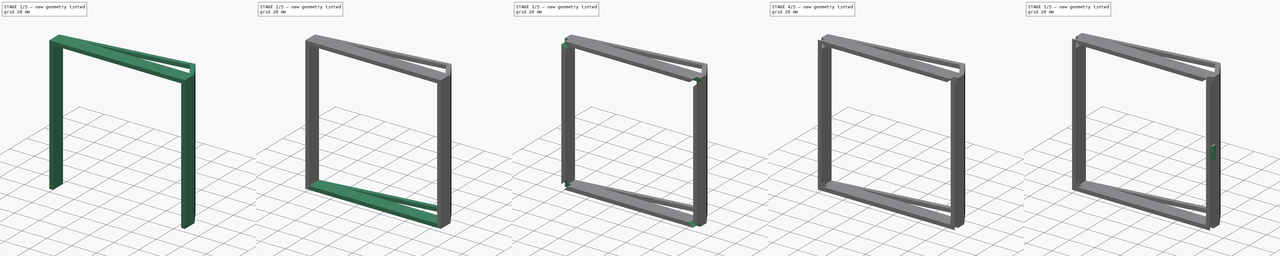
[diagram: build sequence overview — one tinted view per stage of 5, left to right]
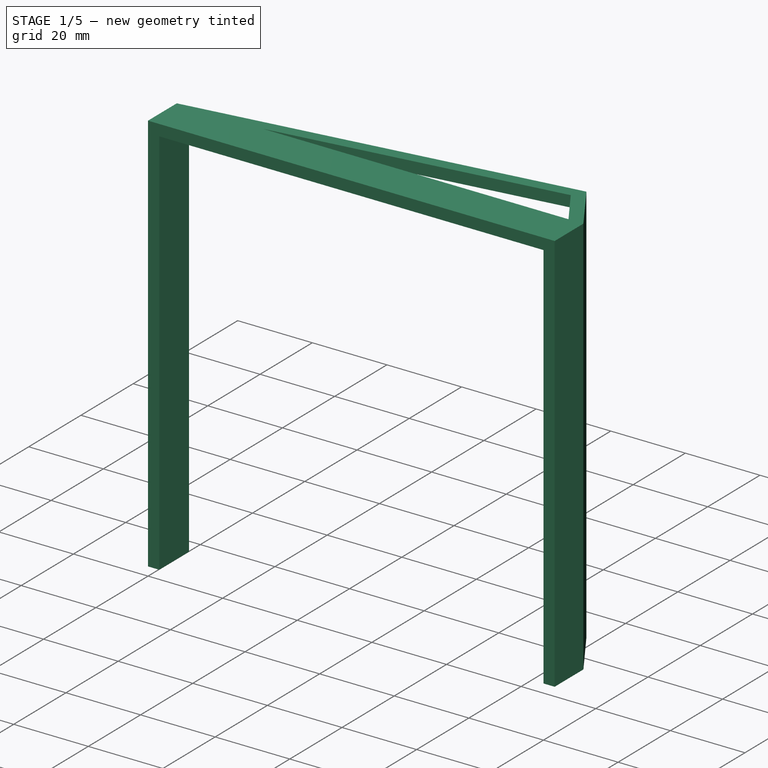
[diagram: stage 1 of 5 — iso view after this stage's code; geometry added in this stage tinted green]
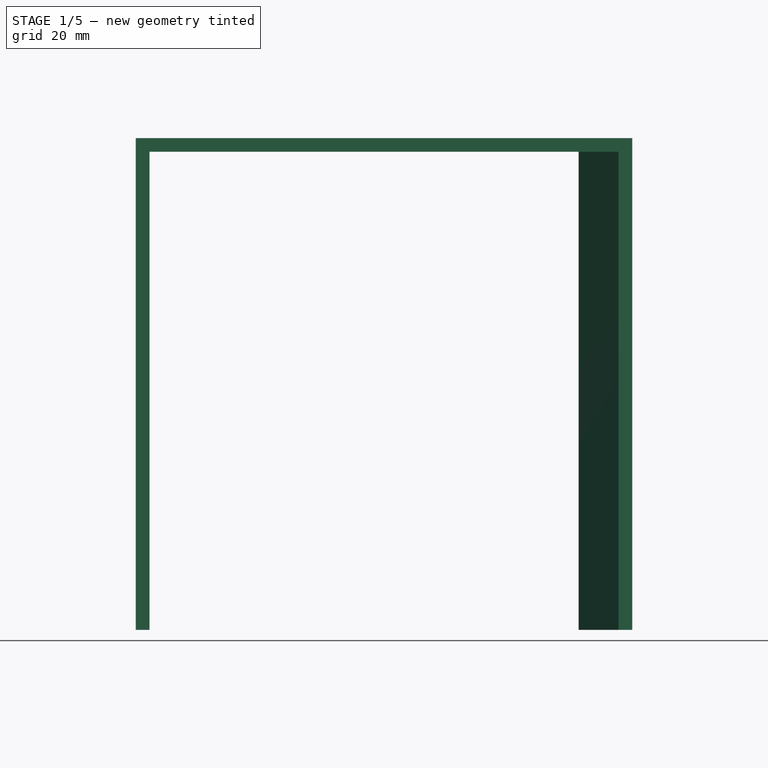
[diagram: stage 1 of 5 — front view after this stage's code; geometry added in this stage tinted green]
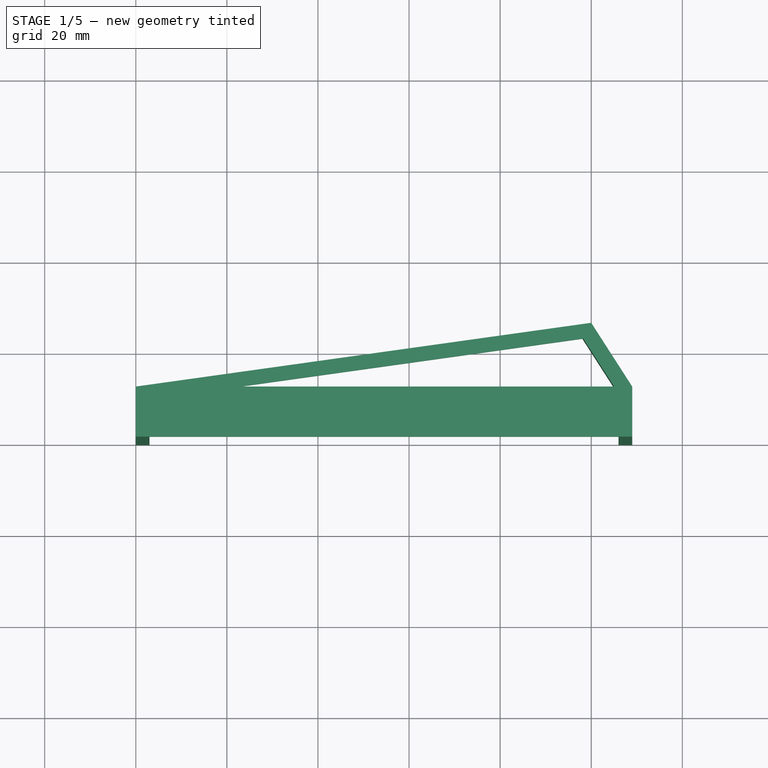
[diagram: stage 1 of 5 — top view after this stage's code; geometry added in this stage tinted green]
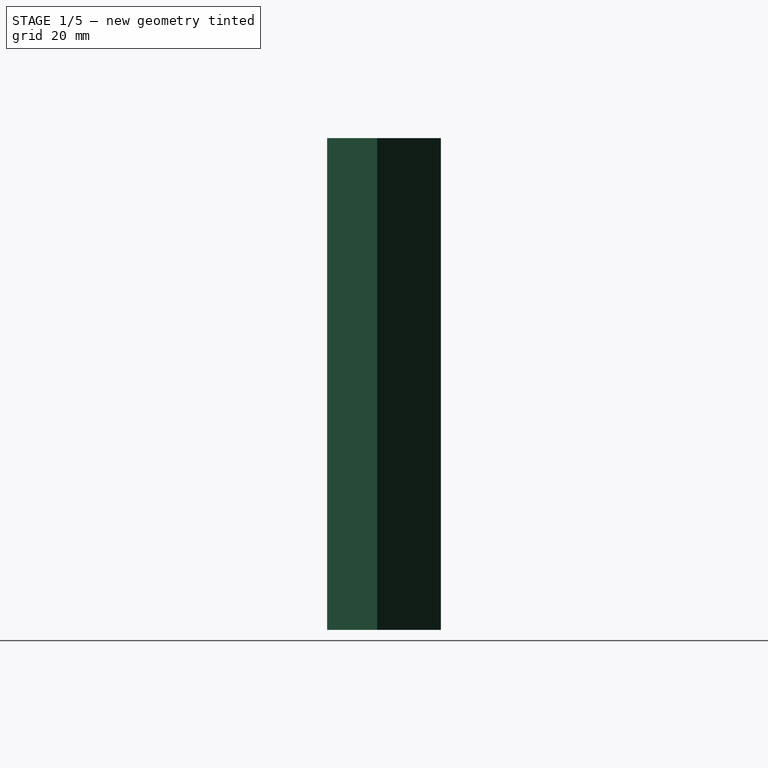
[diagram: stage 1 of 5 — right view after this stage's code; geometry added in this stage tinted green]
FCSTD DOCUMENT  (FreeCAD 0.16R6712 (Git))
Label: speaker-frame
License: All rights reserved
LicenseURL: http://en.wikipedia.org/wiki/All_rights_reserved
objects: Sketcher::SketchObject×7, PartDesign::Pad×7, Part::Fuse×7, Part::Box×4, Part::Cut×2
note: 34 computed .brp shape members not serialized (recipe doc carries the construction recipe); baked Part::Feature solids carry a one-line shape summary decoded from their .brp

FEATURE [Sketcher::SketchObject] Sketch001  label="Side 002"
  Placement = pos=(0,0,105) rot=(0,0,1;0rad)
  sketch-geometry (8):
    g0: LineSegment StartX=0 StartY=0 StartZ=0 EndX=109 EndY=0 EndZ=0
    g1: LineSegment StartX=109 StartY=0 StartZ=0 EndX=109 EndY=11 EndZ=0
    g2: LineSegment StartX=109 StartY=11 StartZ=0 EndX=100 EndY=25 EndZ=0
    g3: LineSegment StartX=100 StartY=25 StartZ=0 EndX=0 EndY=11 EndZ=0
    g4: LineSegment StartX=0 StartY=11 StartZ=0 EndX=0 EndY=0 EndZ=0
    g5: LineSegment StartX=105 StartY=11 StartZ=0 EndX=23 EndY=11 EndZ=0
    g6: LineSegment StartX=23 StartY=11 StartZ=0 EndX=98.2294 EndY=21.5321 EndZ=0
    g7: LineSegment StartX=98.2294 StartY=21.5321 StartZ=0 EndX=105 EndY=11 EndZ=0
  constraints (24):
    c: Coincident(g-1,g0)
    c: Horizontal(g0)
    c: Coincident(g0,g1)
    c: Vertical(g1)
    c: Coincident(g1,g2)
    c: Coincident(g2,g3)
    c: PointOnObject(g3,g-2)
    c: Coincident(g3,g4)
    c: Vertical(g4)
    c: Horizontal(g5)
    c: Coincident(g5,g6)
    c: Coincident(g6,g7)
    c: Coincident(g7,g5)
    c: DistanceY(g4,g4) = 11
    c: Coincident(g-1,g4)
    c: DistanceX(g0,g0) = 109
    c: DistanceY(g1,g1) = 11
    c: DistanceX(g2,g1) = 9
    c: DistanceY(g5,g3) = 0
    c: Parallel(g2,g7)
    c: Parallel(g6,g3)
    c: DistanceX(g5,g1) = 4
    c: DistanceX(g3,g5) = 23
    c: DistanceY(g1,g2) = 14
FEATURE [PartDesign::Pad] Pad001  label="Side 2"
  Length = 3
  Length2 = 100
  Placement = pos=(0,0,105) rot=(0,0,1;0rad)
  Sketch = -> Sketch001
  Type = 0
FEATURE [Sketcher::SketchObject] Sketch002
  sketch-geometry (5):
    g0: LineSegment StartX=0 StartY=0 StartZ=0 EndX=0 EndY=11 EndZ=0
    g1: LineSegment StartX=0 StartY=11 StartZ=0 EndX=3 EndY=11.3979 EndZ=0
    g2: LineSegment StartX=3 StartY=11.3979 StartZ=0 EndX=3 EndY=0 EndZ=0
    g3: LineSegment StartX=3 StartY=0 StartZ=0 EndX=0 EndY=0 EndZ=0
    g4: LineSegment StartX=0.024314 StartY=10.3805 StartZ=0 EndX=0 EndY=11 EndZ=0
  constraints (11):
    c: Coincident(g-1,g0)
    c: PointOnObject(g0,g-2)
    c: Coincident(g0,g1)
    c: Coincident(g1,g2)
    c: PointOnObject(g2,g-1)
    c: Vertical(g2)
    c: Coincident(g2,g3)
    c: Coincident(g3,g0)
    c: Coincident(g4,g0)
    c: DistanceY(g0,g0) = 11
    c: DistanceX(g3,g3) = 3
FEATURE [PartDesign::Pad] Pad002  label="Vorne"
  Length = 108
  Length2 = 100
  Sketch = -> Sketch002
  Type = 0
FEATURE [Sketcher::SketchObject] Sketch003
  sketch-geometry (10):
    g0: LineSegment StartX=109 StartY=0 StartZ=0 EndX=109 EndY=11 EndZ=0
    g1: LineSegment StartX=109 StartY=11 StartZ=0 EndX=100 EndY=25 EndZ=0
    g2: LineSegment StartX=100 StartY=25 StartZ=0 EndX=97.2477 EndY=24.6147 EndZ=0
    g3: LineSegment StartX=97.2477 StartY=24.6147 StartZ=0 EndX=106 EndY=11 EndZ=0
    g4: LineSegment StartX=106 StartY=11 StartZ=0 EndX=106 EndY=0 EndZ=0
    g5: LineSegment StartX=106 StartY=0 StartZ=0 EndX=109 EndY=0 EndZ=0
    g6: LineSegment [constr] StartX=0 StartY=0 StartZ=0 EndX=0 EndY=11 EndZ=0
    g7: LineSegment [constr] StartX=0 StartY=11 StartZ=0 EndX=100 EndY=25 EndZ=0
    g8: LineSegment [constr] StartX=100 StartY=25 StartZ=0 EndX=100 EndY=0 EndZ=0
    g9: LineSegment [constr] StartX=100 StartY=0 StartZ=0 EndX=0 EndY=0 EndZ=0
  constraints (29):
    c: Vertical(g0)
    c: Coincident(g0,g1)
    c: Coincident(g1,g2)
    c: Coincident(g2,g3)
    c: Coincident(g3,g4)
    c: Vertical(g4)
    c: Coincident(g4,g5)
    c: Coincident(g5,g0)
    c: Horizontal(g5)
    c: Parallel(g3,g1)
    c: DistanceY(g0,g0) = 11
    c: PointOnObject(g6,g-2)
    c: Vertical(g6)
    c: Coincident(g6,g7)
    c: Coincident(g7,g8)
    c: PointOnObject(g8,g-1)
    c: Vertical(g8)
    c: Coincident(g8,g9)
    c: Coincident(g9,g6)
    c: Horizontal(g9)
    c: DistanceX(g9,g9) = 100
    c: DistanceY(g6,g6) = 11
    c: DistanceY(g8,g8) = 25
    c: Coincident(g1,g7)
    c: Parallel(g2,g7)
    c: DistanceX(g8,g0) = 9
    c: DistanceY(g0,g3) = 0
    c: DistanceY(g8,g4) = 0
    c: DistanceX(g3,g0) = 3
FEATURE [PartDesign::Pad] Pad003
  Length = 108
  Length2 = 100
  Sketch = -> Sketch003
  Type = 0
FEATURE [Part::Fuse] Fusion
  Base = -> Pad002
  Tool = -> Pad003
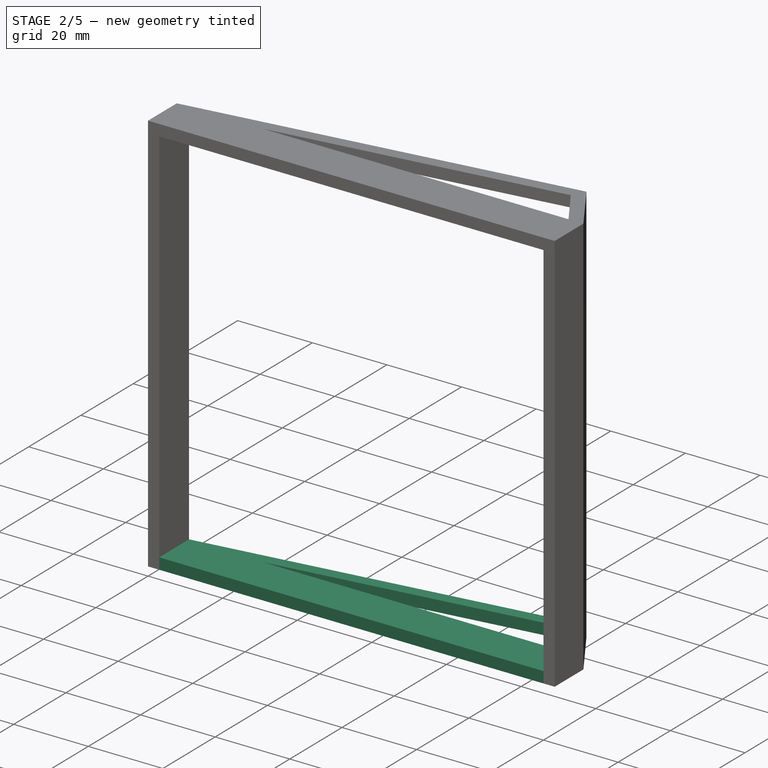
[diagram: stage 2 of 5 — iso view after this stage's code; geometry added in this stage tinted green]
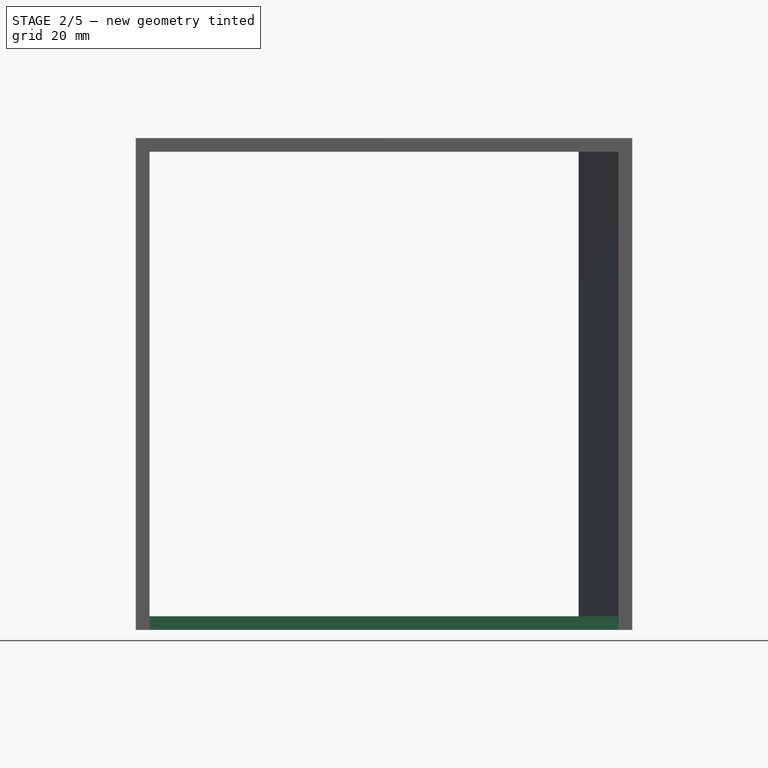
[diagram: stage 2 of 5 — front view after this stage's code; geometry added in this stage tinted green]
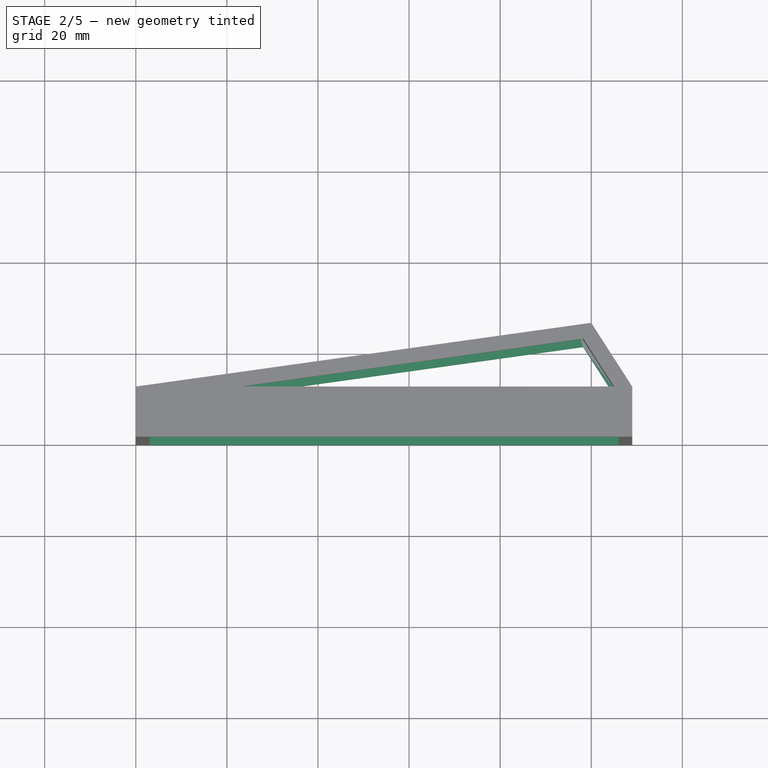
[diagram: stage 2 of 5 — top view after this stage's code; geometry added in this stage tinted green]
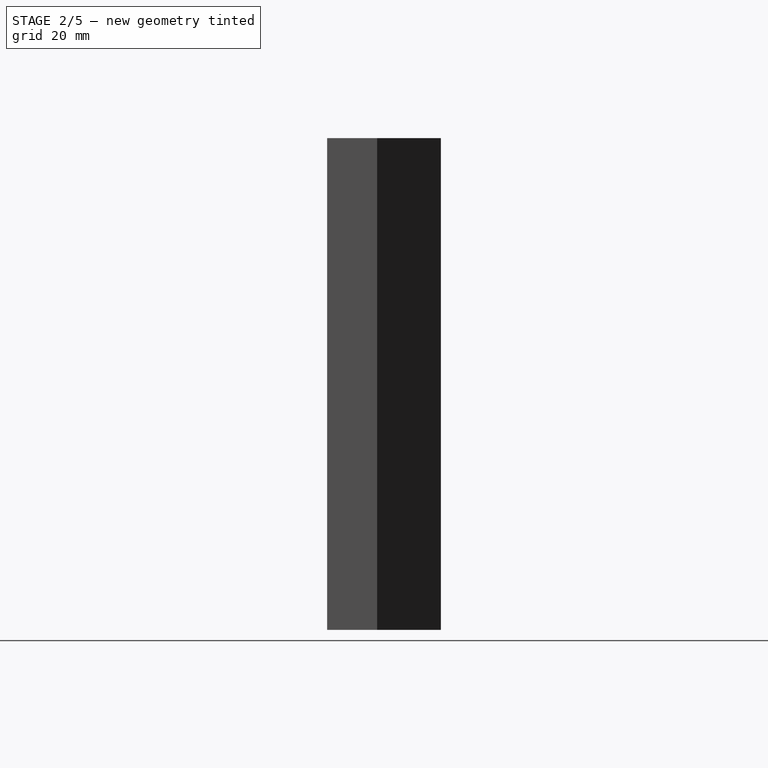
[diagram: stage 2 of 5 — right view after this stage's code; geometry added in this stage tinted green]
FEATURE [Sketcher::SketchObject] Sketch  label="Side 1"
  sketch-geometry (8):
    g0: LineSegment StartX=0 StartY=0 StartZ=0 EndX=109 EndY=0 EndZ=0
    g1: LineSegment StartX=109 StartY=0 StartZ=0 EndX=109 EndY=11 EndZ=0
    g2: LineSegment StartX=109 StartY=11 StartZ=0 EndX=100 EndY=25 EndZ=0
    g3: LineSegment StartX=100 StartY=25 StartZ=0 EndX=0 EndY=11 EndZ=0
    g4: LineSegment StartX=0 StartY=11 StartZ=0 EndX=0 EndY=0 EndZ=0
    g5: LineSegment StartX=105 StartY=11 StartZ=0 EndX=23 EndY=11 EndZ=0
    g6: LineSegment StartX=23 StartY=11 StartZ=0 EndX=98.2294 EndY=21.5321 EndZ=0
    g7: LineSegment StartX=98.2294 StartY=21.5321 StartZ=0 EndX=105 EndY=11 EndZ=0
  constraints (24):
    c: Coincident(g-1,g0)
    c: Horizontal(g0)
    c: Coincident(g0,g1)
    c: Vertical(g1)
    c: Coincident(g1,g2)
    c: Coincident(g2,g3)
    c: PointOnObject(g3,g-2)
    c: Coincident(g3,g4)
    c: Vertical(g4)
    c: Horizontal(g5)
    c: Coincident(g5,g6)
    c: Coincident(g6,g7)
    c: Coincident(g7,g5)
    c: DistanceY(g4,g4) = 11
    c: Coincident(g-1,g4)
    c: DistanceX(g0,g0) = 109
    c: DistanceY(g1,g1) = 11
    c: DistanceX(g2,g1) = 9
    c: DistanceY(g5,g3) = 0
    c: Parallel(g2,g7)
    c: Parallel(g6,g3)
    c: DistanceX(g5,g1) = 4
    c: DistanceX(g3,g5) = 23
    c: DistanceY(g1,g2) = 14
FEATURE [PartDesign::Pad] Pad  label="Side1"
  Length = 3
  Length2 = 100
  Sketch = -> Sketch
  Type = 0
FEATURE [Part::Fuse] Fusion005  label="Sides"
  Base = -> Pad
  Tool = -> Pad001
FEATURE [Part::Fuse] Fusion009  label="All sides"
  Base = -> Fusion005
FEATURE [Part::Fuse] Fusion011
  Base = -> Fusion009
  Tool = -> Fusion
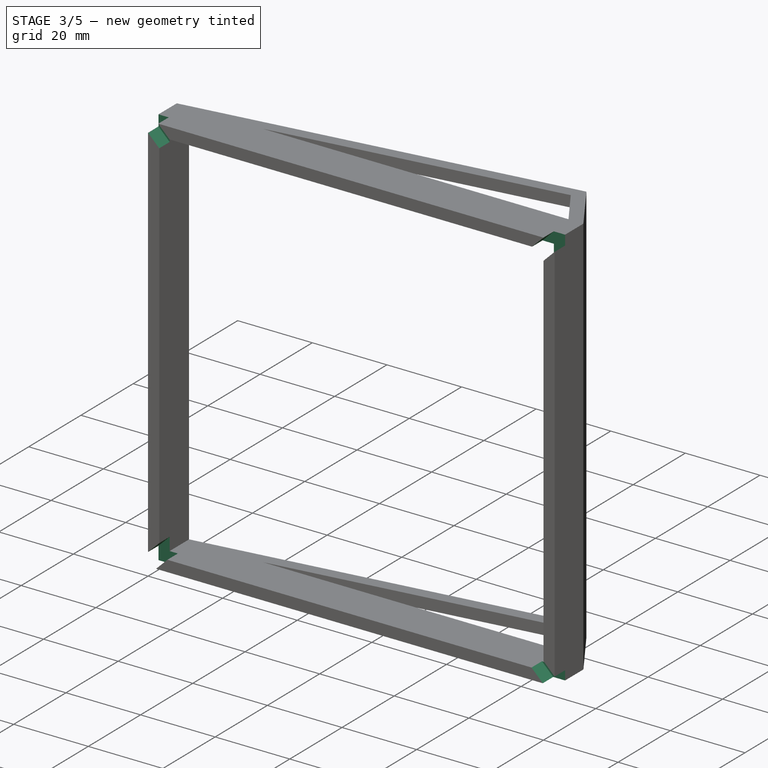
[diagram: stage 3 of 5 — iso view after this stage's code; geometry added in this stage tinted green]
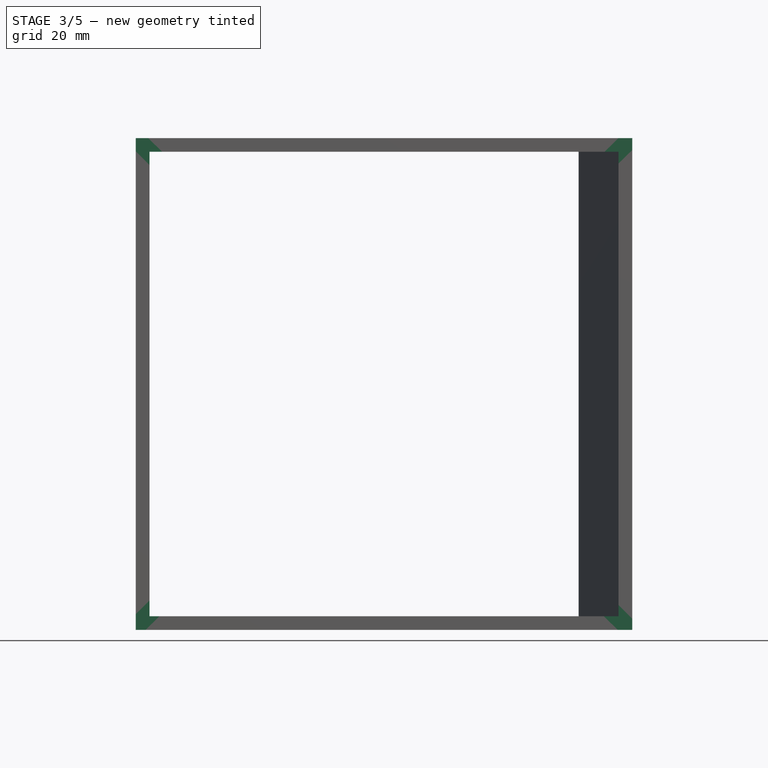
[diagram: stage 3 of 5 — front view after this stage's code; geometry added in this stage tinted green]
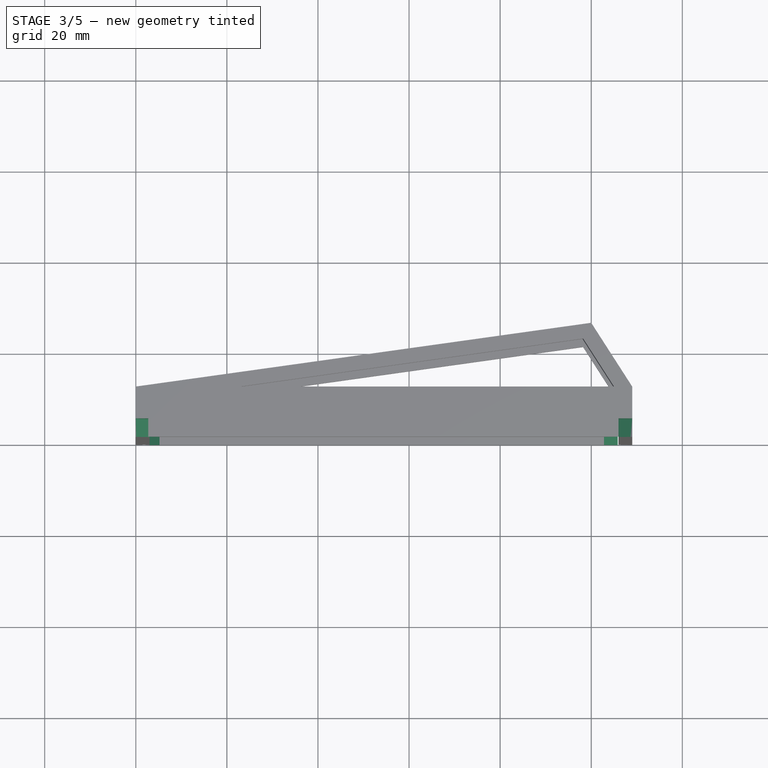
[diagram: stage 3 of 5 — top view after this stage's code; geometry added in this stage tinted green]
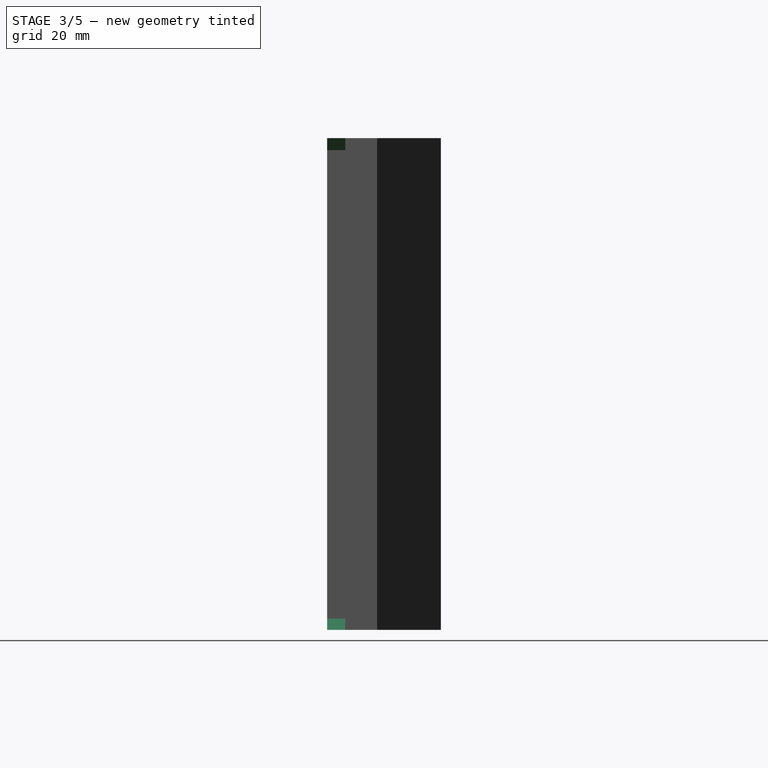
[diagram: stage 3 of 5 — right view after this stage's code; geometry added in this stage tinted green]
FEATURE [Part::Box] Box007  label="Cube007"
  Height = 4
  Length = 200
  Placement = pos=(-12,0,117) rot=(0,1,0;0.781908rad)
  Width = 4
FEATURE [Part::Box] Box008  label="Cube008"
  Height = 4
  Length = 200
  Placement = pos=(-9,0,-11) rot=(0,-1,0;0.778417rad)
  Width = 4
FEATURE [Part::Fuse] Fusion010  label="EdgeCuts"
  Base = -> Box007
  Tool = -> Box008
FEATURE [Part::Cut] Cut
  Base = -> Fusion011
  Tool = -> Fusion010
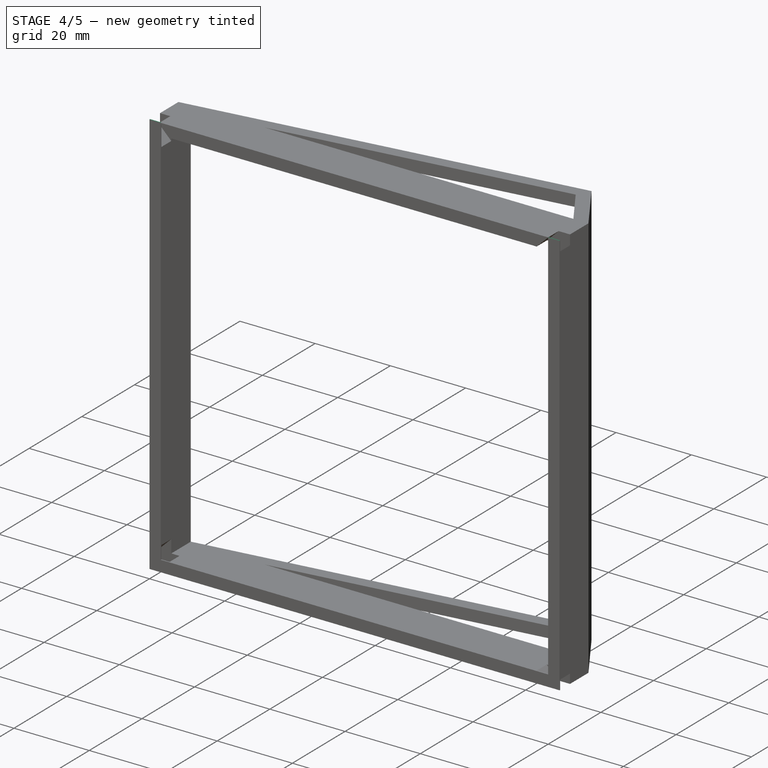
[diagram: stage 4 of 5 — iso view after this stage's code; geometry added in this stage tinted green]
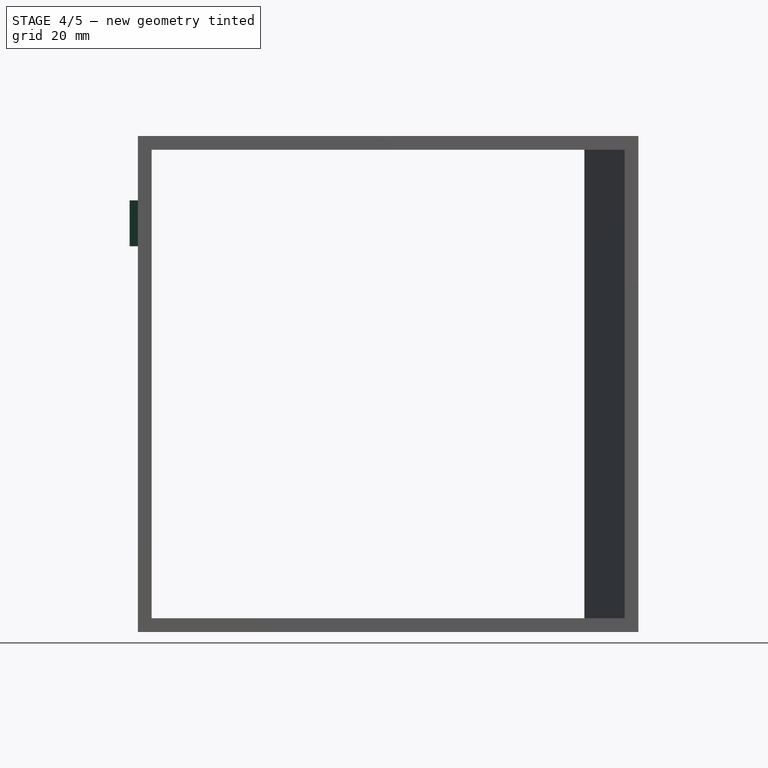
[diagram: stage 4 of 5 — front view after this stage's code; geometry added in this stage tinted green]
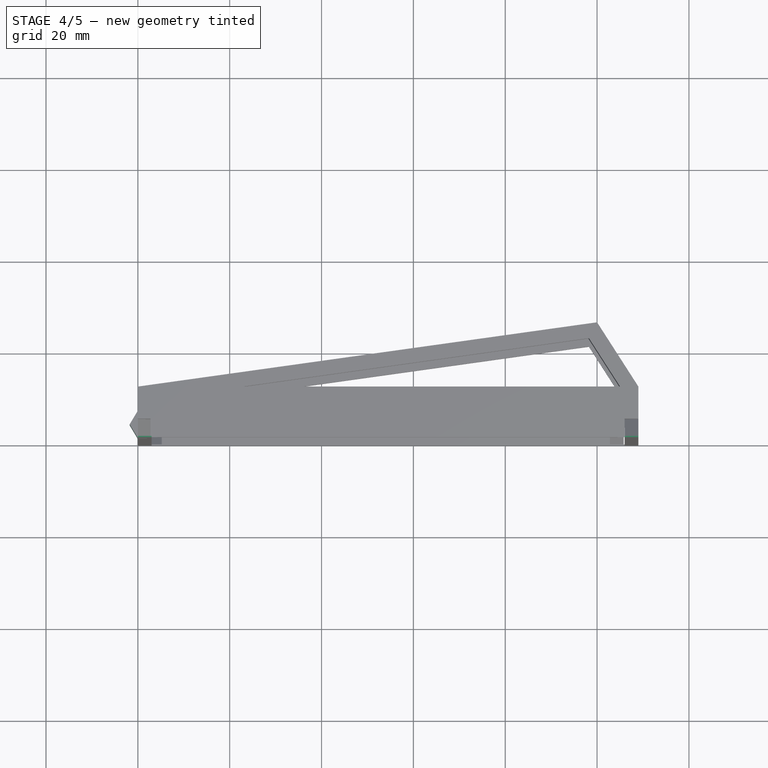
[diagram: stage 4 of 5 — top view after this stage's code; geometry added in this stage tinted green]
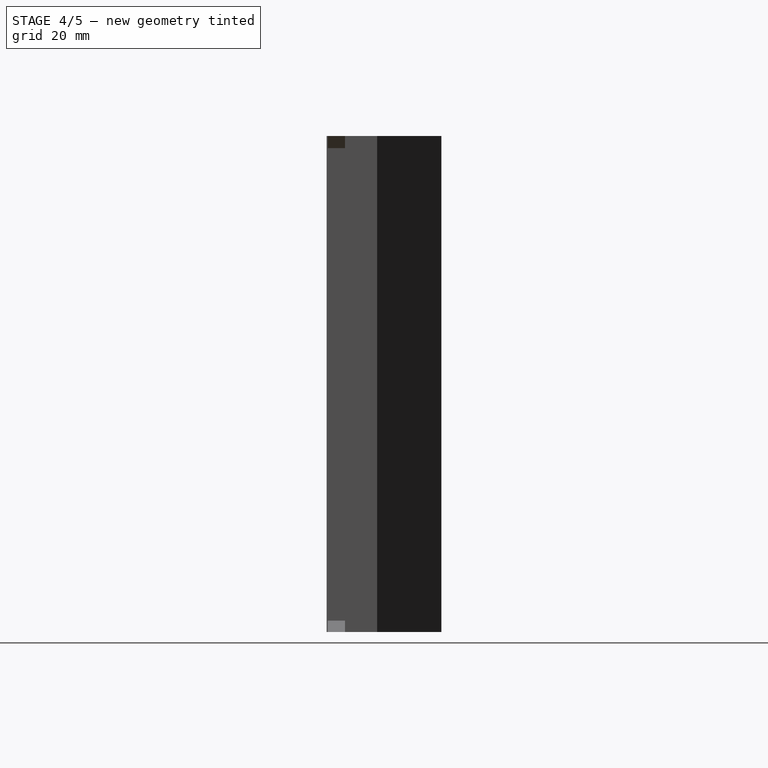
[diagram: stage 4 of 5 — right view after this stage's code; geometry added in this stage tinted green]
FEATURE [PartDesign::Pad] Pad005  label="Snap2"
  Length = 10
  Length2 = 100
  Placement = pos=(0,0,84) rot=(0,0,1;0rad)
  Sketch = -> Sketch005
  Type = 0
FEATURE [Part::Box] Box009  label="Würfel"
  Height = 108
  Length = 109
  Width = 0.25
FEATURE [Part::Box] Box010  label="Würfel001"
  Height = 106
  Length = 103
  Placement = pos=(3,0,3) rot=(0,0,1;0rad)
  Width = 0.25
FEATURE [Part::Cut] Cut003
  Base = -> Box009
  Tool = -> Box010
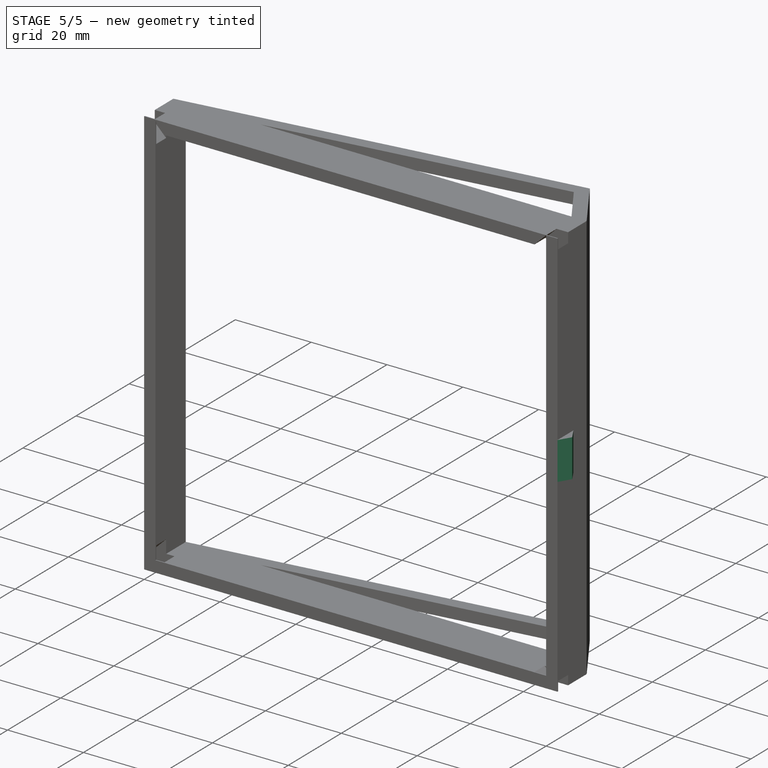
[diagram: stage 5 of 5 — iso view after this stage's code; geometry added in this stage tinted green]
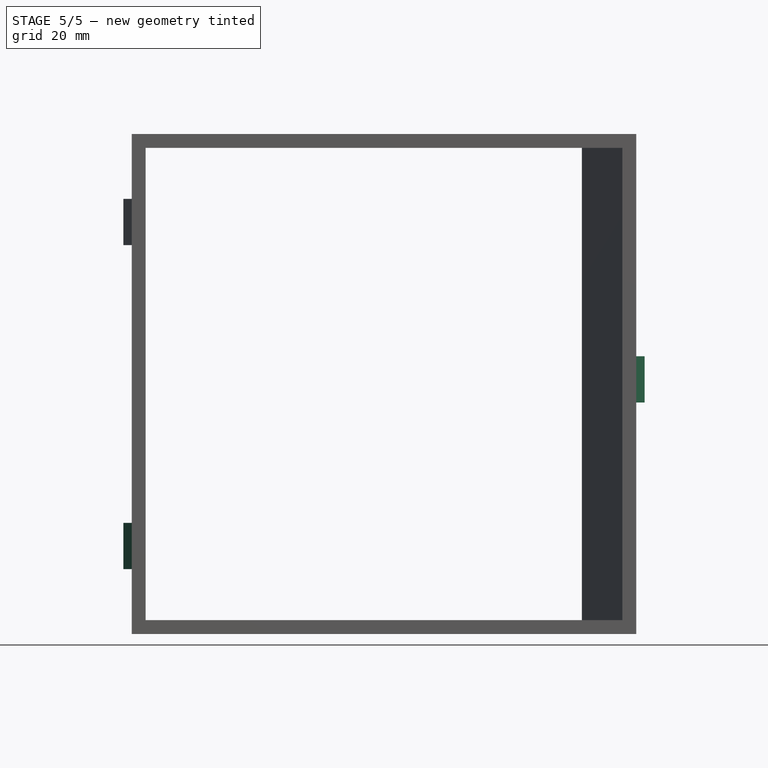
[diagram: stage 5 of 5 — front view after this stage's code; geometry added in this stage tinted green]
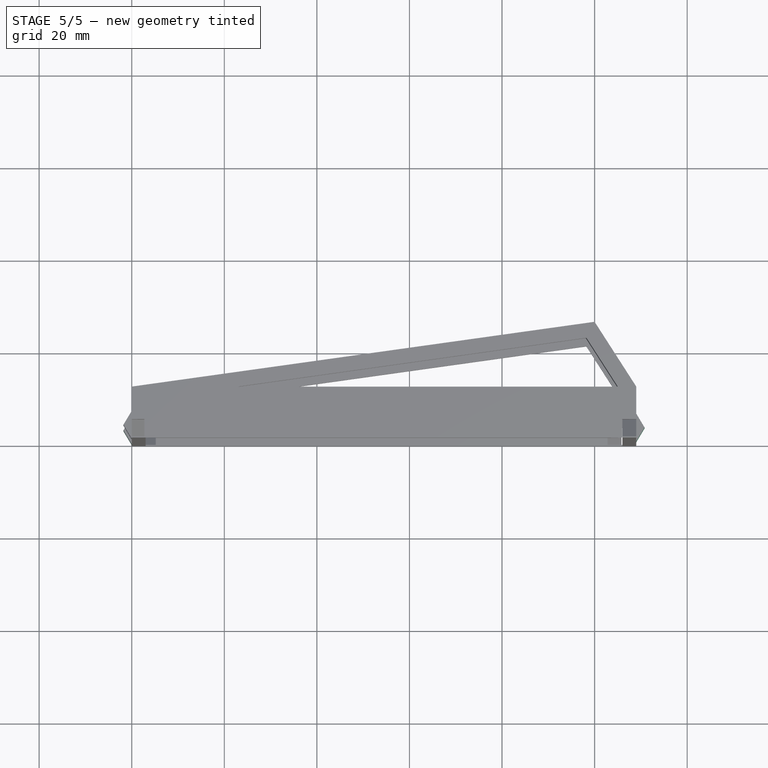
[diagram: stage 5 of 5 — top view after this stage's code; geometry added in this stage tinted green]
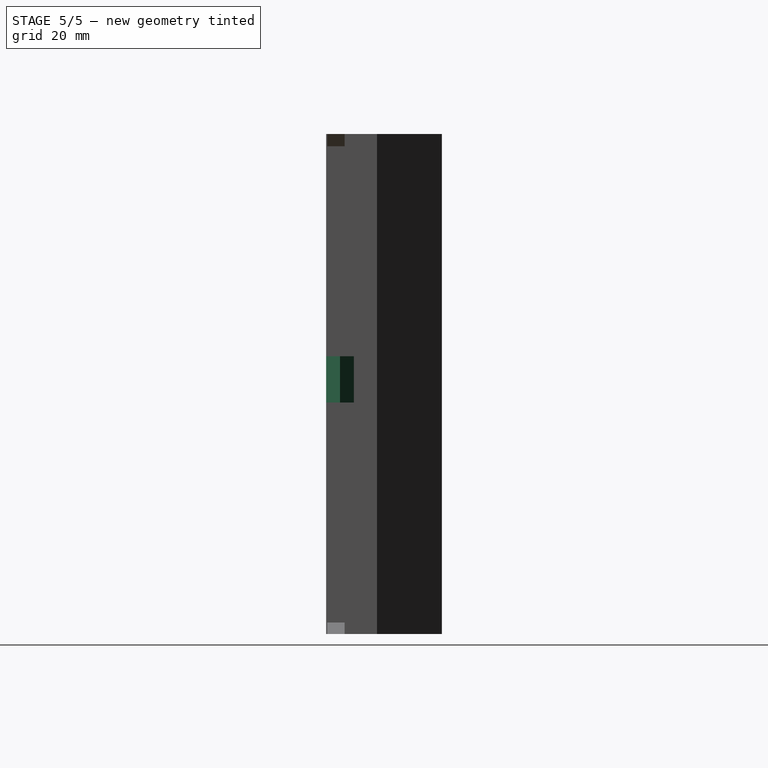
[diagram: stage 5 of 5 — right view after this stage's code; geometry added in this stage tinted green]
FEATURE [Sketcher::SketchObject] Sketch004
  Placement = pos=(0,0,14) rot=(0,0,1;0rad)
  sketch-geometry (7):
    g0: LineSegment StartX=0 StartY=9 StartZ=0 EndX=0 EndY=6 EndZ=0
    g1: LineSegment StartX=0 StartY=6 StartZ=0 EndX=-1.8 EndY=3 EndZ=0
    g2: LineSegment StartX=-1.8 StartY=3 StartZ=0 EndX=0 EndY=0 EndZ=0
    g3: LineSegment StartX=0 StartY=0 StartZ=0 EndX=2 EndY=0 EndZ=0
    g4: LineSegment StartX=3 StartY=9 StartZ=0 EndX=0 EndY=9 EndZ=0
    g5: LineSegment StartX=2 StartY=0 StartZ=0 EndX=1.5 EndY=7 EndZ=0
    g6: LineSegment StartX=1.5 StartY=7 StartZ=0 EndX=3 EndY=9 EndZ=0
  constraints (20):
    c: PointOnObject(g0,g-2)
    c: PointOnObject(g0,g-2)
    c: Coincident(g0,g1)
    c: Coincident(g1,g2)
    c: Coincident(g2,g-1)
    c: Coincident(g2,g3)
    c: PointOnObject(g4,g-2)
    c: DistanceX(g3,g3) = 2
    c: Horizontal(g4)
    c: DistanceX(g1,g-1) = 1.8
    c: DistanceY(g2,g2) = 3
    c: DistanceY(g1,g1) = 3
    c: DistanceY(g3,g4) = 9
    c: Coincident(g5,g3)
    c: Coincident(g6,g5)
    c: Coincident(g4,g6)
    c: DistanceX(g4,g4) = 3
    c: DistanceY(g5,g4) = 2
    c: Horizontal(g3)
    c: DistanceX(g6,g6) = 1.5
FEATURE [Sketcher::SketchObject] Sketch005
  Placement = pos=(0,0,84) rot=(0,0,1;0rad)
  sketch-geometry (7):
    g0: LineSegment StartX=0 StartY=9 StartZ=0 EndX=0 EndY=6 EndZ=0
    g1: LineSegment StartX=0 StartY=6 StartZ=0 EndX=-1.8 EndY=3 EndZ=0
    g2: LineSegment StartX=-1.8 StartY=3 StartZ=0 EndX=0 EndY=0 EndZ=0
    g3: LineSegment StartX=0 StartY=0 StartZ=0 EndX=2 EndY=0 EndZ=0
    g4: LineSegment StartX=3 StartY=9 StartZ=0 EndX=0 EndY=9 EndZ=0
    g5: LineSegment StartX=2 StartY=0 StartZ=0 EndX=1.5 EndY=7 EndZ=0
    g6: LineSegment StartX=1.5 StartY=7 StartZ=0 EndX=3 EndY=9 EndZ=0
  constraints (22):
    c: PointOnObject(g0,g-2)
    c: Vertical(g0)
    c: Coincident(g0,g1)
    c: Coincident(g1,g2)
    c: Coincident(g2,g-1)
    c: Coincident(g2,g3)
    c: PointOnObject(g4,g-2)
    c: Coincident(g0,g4)
    c: DistanceX(g3,g3) = 2
    c: Horizontal(g4)
    c: DistanceX(g1,g-1) = 1.8
    c: DistanceY(g2,g2) = 3
    c: DistanceY(g1,g1) = 3
    c: DistanceY(g3,g4) = 9
    c: Coincident(g5,g3)
    c: PointOnObject(g6,g5)
    c: Coincident(g6,g4)
    c: DistanceX(g4,g4) = 3
    c: DistanceY(g5,g4) = 2
    c: Coincident(g6,g5)
    c: DistanceX(g6,g6) = 1.5
    c: Horizontal(g3)
FEATURE [PartDesign::Pad] Pad004  label="Snap1"
  Length = 10
  Length2 = 100
  Placement = pos=(0,0,14) rot=(0,0,1;0rad)
  Sketch = -> Sketch004
  Type = 0
FEATURE [Sketcher::SketchObject] Sketch006
  Placement = pos=(-2,0,50) rot=(0,0,1;0rad)
  sketch-geometry (7):
    g0: LineSegment StartX=111 StartY=0 StartZ=0 EndX=112.8 EndY=3 EndZ=0
    g1: LineSegment StartX=112.8 StartY=3 StartZ=0 EndX=111 EndY=6 EndZ=0
    g2: LineSegment StartX=111 StartY=6 StartZ=0 EndX=111 EndY=9 EndZ=0
    g3: LineSegment StartX=111 StartY=9 StartZ=0 EndX=108 EndY=9 EndZ=0
    g4: LineSegment StartX=108 StartY=9 StartZ=0 EndX=109.5 EndY=7 EndZ=0
    g5: LineSegment StartX=109.5 StartY=7 StartZ=0 EndX=109 EndY=0 EndZ=0
    g6: LineSegment StartX=109 StartY=0 StartZ=0 EndX=111 EndY=0 EndZ=0
  constraints (21):
    c: PointOnObject(g0,g-1)
    c: Coincident(g0,g1)
    c: Coincident(g1,g2)
    c: Vertical(g2)
    c: Coincident(g2,g3)
    c: Horizontal(g3)
    c: Coincident(g3,g4)
    c: Coincident(g4,g5)
    c: Coincident(g5,g6)
    c: Horizontal(g6)
    c: DistanceX(g-1,g0) = 111
    c: Coincident(g0,g6)
    c: DistanceX(g0,g0) = 1.8
    c: DistanceY(g0,g0) = 3
    c: DistanceY(g0,g1) = 3
    c: DistanceX(g0,g1) = 0
    c: DistanceX(g3,g3) = 3
    c: DistanceY(g1,g2) = 3
    c: DistanceX(g6,g6) = 2
    c: DistanceY(g4,g4) = 2
    c: DistanceX(g3,g4) = 1.5
FEATURE [PartDesign::Pad] Pad006  label="Snap3"
  Length = 10
  Length2 = 100
  Placement = pos=(-2,0,50) rot=(0,0,1;0rad)
  Sketch = -> Sketch006
  Type = 0
FEATURE [Part::Fuse] Fusion006
  Base = -> Pad004
  Tool = -> Pad005
FEATURE [Part::Fuse] Fusion007  label="Snaps"
  Base = -> Pad006
  Tool = -> Fusion006
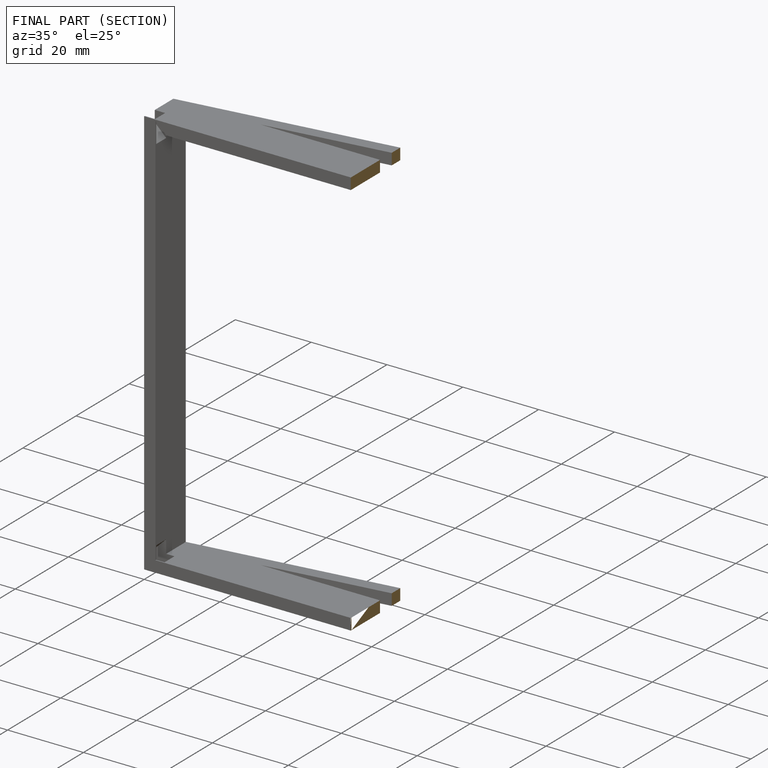
[diagram: finished part — half-section view (interior)]
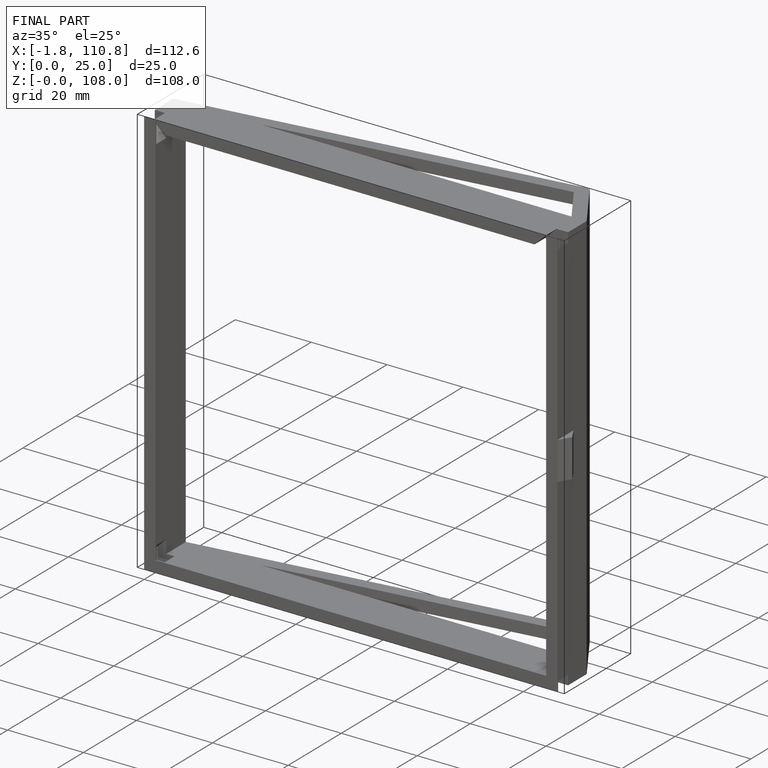
[diagram: finished part — iso view with bounding-box wireframe]
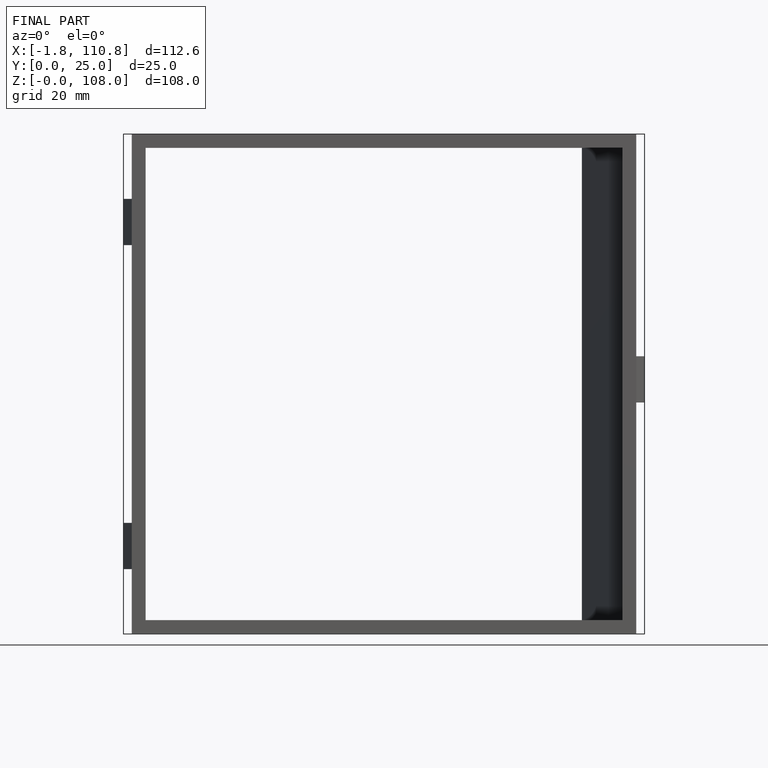
[diagram: finished part — front view with bounding-box wireframe]
